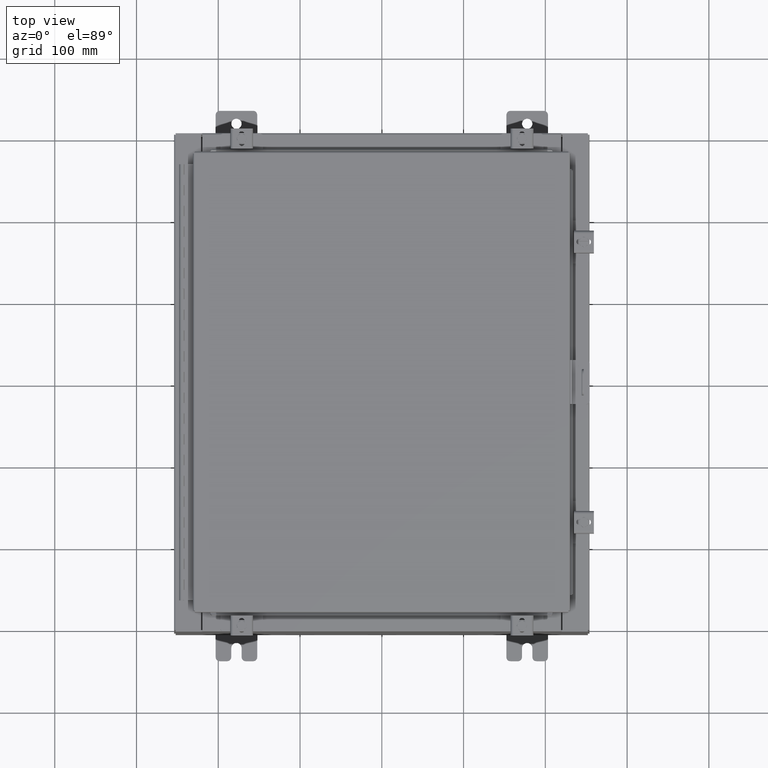
[diagram: clean part render]
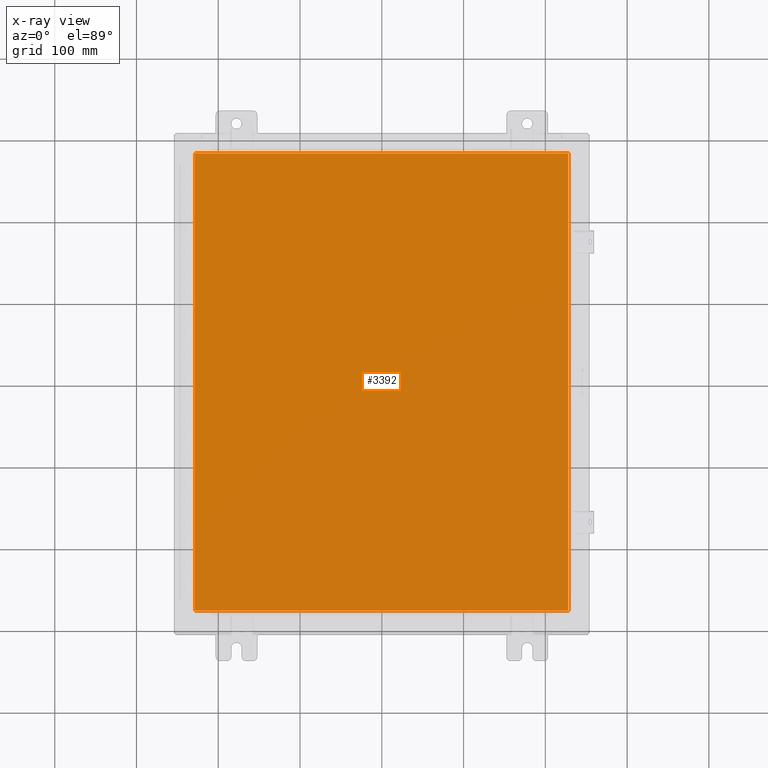
[diagram: x-ray — body ghosted, one internal face saturated and labeled with its STEP entity id]
A machine part, top view, then the same camera in x-ray: the body is ghosted and one INTERNAL B-rep face — a face not visible from any outside direction — is saturated and labeled: STEP entity #3392.
In plain terms, the highlighted planar face has unit normal (0, 0, -1).
Its self-contained STEP definition (entity closure, byte-faithful):
#2451 = EDGE_CURVE ( 'NONE', #12207, #20160, #10073, .T. ) ;
#3392 = ADVANCED_FACE ( 'NONE', ( #16802 ), #20789, .T. ) ;
#3479 = VERTEX_POINT ( 'NONE', #8453 ) ;
#4009 = EDGE_CURVE ( 'NONE', #30331, #3479, #13610, .T. ) ;
#6043 = VECTOR ( 'NONE', #12140, 39.37007874015748100 ) ;
#6419 = DIRECTION ( 'NONE',  ( -1.000000000000000000, -0.0000000000000000000, -0.0000000000000000000 ) ) ;
#6449 = CARTESIAN_POINT ( 'NONE',  ( 8.990299999999999500, 11.00630000000000000, -0.07470000000000019700 ) ) ;
#6927 = VECTOR ( 'NONE', #19323, 39.37007874015748100 ) ;
#7901 = ORIENTED_EDGE ( 'NONE', *, *, #25656, .F. ) ;
#8453 = CARTESIAN_POINT ( 'NONE',  ( 8.990299999999997700, -11.00630000000000000, -0.07470000000000000300 ) ) ;
#8474 = AXIS2_PLACEMENT_3D ( 'NONE', #13180, #9533, #9207 ) ;
#9076 = ORIENTED_EDGE ( 'NONE', *, *, #4009, .F. ) ;
#9207 = DIRECTION ( 'NONE',  ( -1.000000000000000000, 0.0000000000000000000, -0.0000000000000000000 ) ) ;
#9533 = DIRECTION ( 'NONE',  ( 0.0000000000000000000, 0.0000000000000000000, -1.000000000000000000 ) ) ;
#10073 = LINE ( 'NONE', #6449, #23459 ) ;
#11515 = CARTESIAN_POINT ( 'NONE',  ( -8.990299999999997700, -11.00630000000000100, -0.07470000000000000300 ) ) ;
#11890 = ORIENTED_EDGE ( 'NONE', *, *, #17187, .F. ) ;
#12140 = DIRECTION ( 'NONE',  ( 0.0000000000000000000, -1.000000000000000000, 0.0000000000000000000 ) ) ;
#12207 = VERTEX_POINT ( 'NONE', #27649 ) ;
#13180 = CARTESIAN_POINT ( 'NONE',  ( 0.0000000000000000000, 0.0000000000000000000, -0.07470000000000000300 ) ) ;
#13610 = LINE ( 'NONE', #23841, #6927 ) ;
#16059 = LINE ( 'NONE', #20360, #17647 ) ;
#16802 = FACE_OUTER_BOUND ( 'NONE', #23229, .T. ) ;
#17173 = CARTESIAN_POINT ( 'NONE',  ( -8.990299999999999500, 11.00630000000000100, -0.07470000000000019700 ) ) ;
#17187 = EDGE_CURVE ( 'NONE', #3479, #12207, #16059, .T. ) ;
#17647 = VECTOR ( 'NONE', #22779, 39.37007874015748100 ) ;
#19323 = DIRECTION ( 'NONE',  ( 1.000000000000000000, -0.0000000000000000000, -0.0000000000000000000 ) ) ;
#20160 = VERTEX_POINT ( 'NONE', #20730 ) ;
#20360 = CARTESIAN_POINT ( 'NONE',  ( 8.990299999999997700, -11.00630000000000000, -0.07470000000000019700 ) ) ;
#20730 = CARTESIAN_POINT ( 'NONE',  ( -8.990299999999999500, 11.00630000000000000, -0.07470000000000000300 ) ) ;
#20789 = PLANE ( 'NONE',  #8474 ) ;
#20837 = ORIENTED_EDGE ( 'NONE', *, *, #2451, .F. ) ;
#22779 = DIRECTION ( 'NONE',  ( 0.0000000000000000000, 1.000000000000000000, 0.0000000000000000000 ) ) ;
#23229 = EDGE_LOOP ( 'NONE', ( #11890, #9076, #7901, #20837 ) ) ;
#23459 = VECTOR ( 'NONE', #6419, 39.37007874015748100 ) ;
#23841 = CARTESIAN_POINT ( 'NONE',  ( -8.990300000000001300, -11.00630000000000100, -0.07469999999999910000 ) ) ;
#25656 = EDGE_CURVE ( 'NONE', #20160, #30331, #26077, .T. ) ;
#26077 = LINE ( 'NONE', #17173, #6043 ) ;
#27649 = CARTESIAN_POINT ( 'NONE',  ( 8.990299999999997700, 11.00630000000000000, -0.07470000000000000300 ) ) ;
#30331 = VERTEX_POINT ( 'NONE', #11515 ) ;